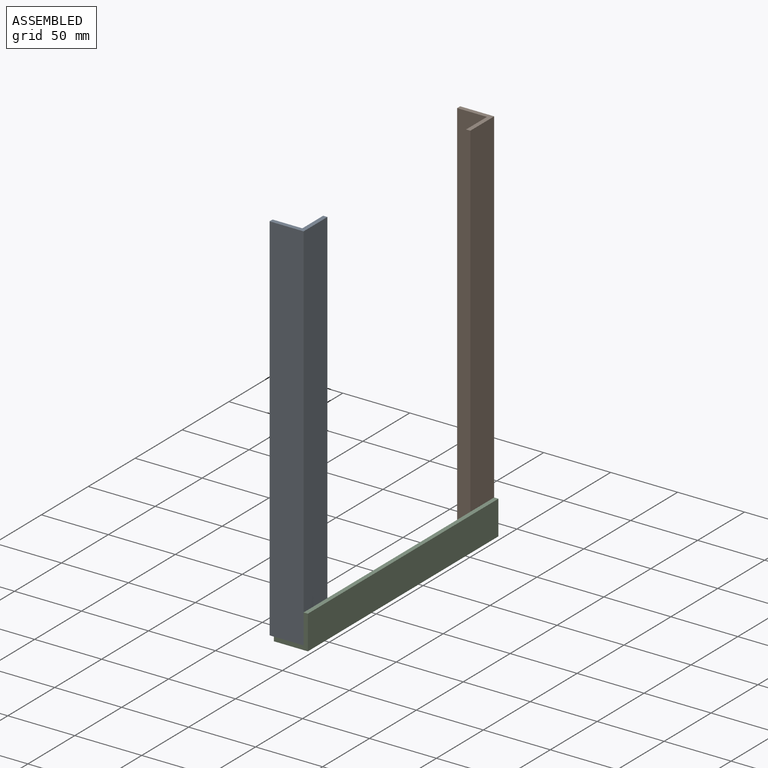
[diagram: assembled view]
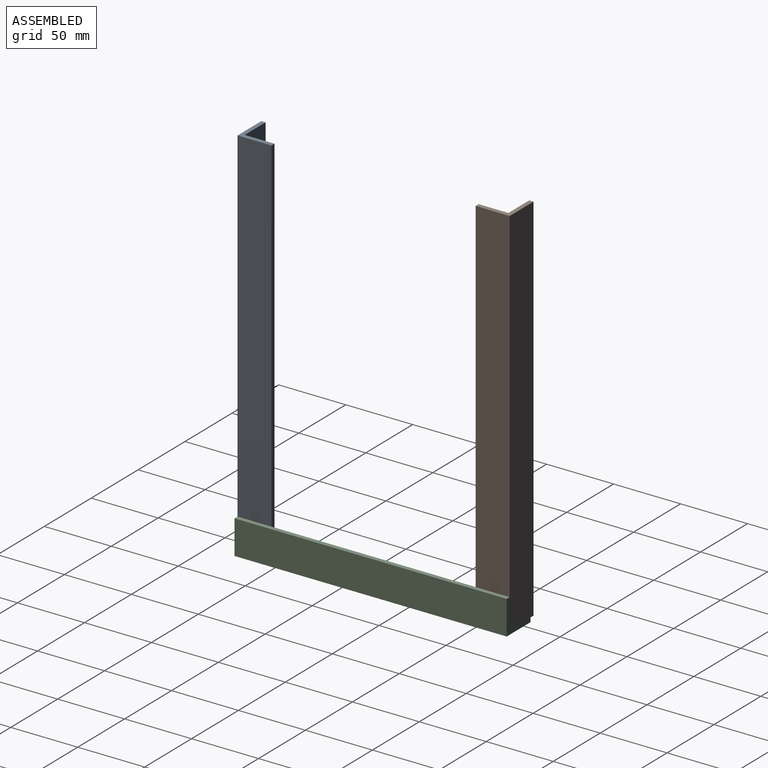
[diagram: assembled view, second angle]
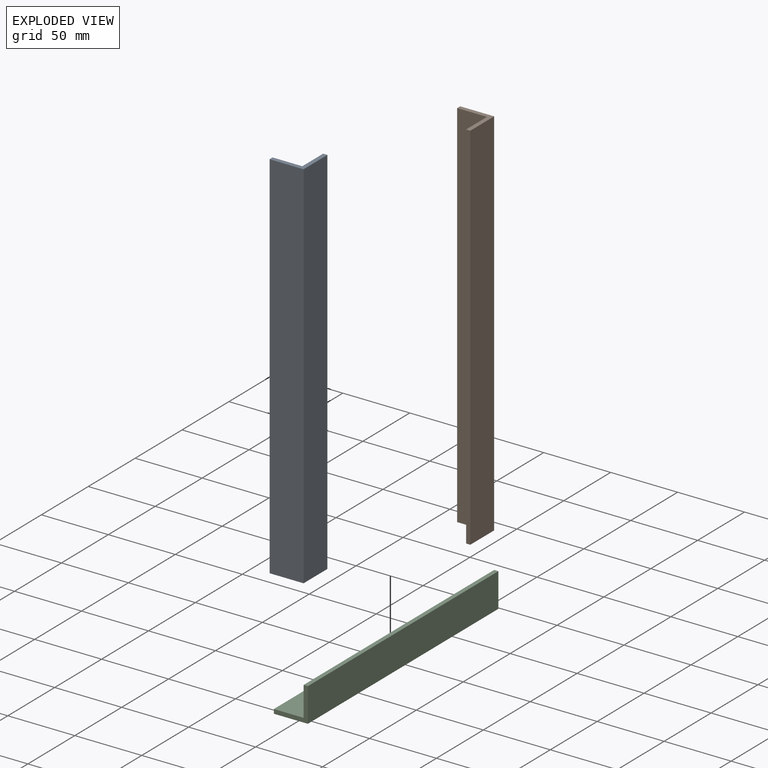
[diagram: exploded view]
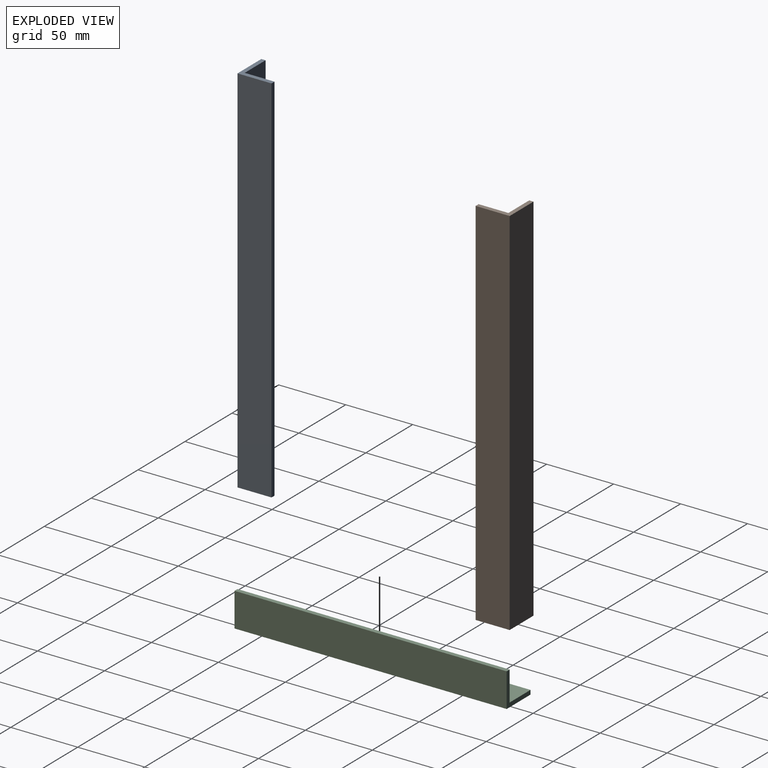
[diagram: exploded view, second angle]
ASSEMBLY  parts=3 mates=2
PART A: 8 faces, bbox 25.4x279.4x25.4 mm
  f0: plane 279.4x22.23mm, normal (-1,0,0), area 6209.7mm2, adj f1,f5,f6,f7
  f1: plane 279.4x22.23mm, normal (0,0,1), area 6209.7mm2, adj f0,f2,f6,f7
  f2: plane 279.4x3.18mm, normal (-1,0,0), area 887.1mm2, adj f1,f3,f6,f7
  f3: plane 279.4x25.4mm, normal (0,0,-1), area 7096.8mm2, adj f2,f4,f6,f7
  f4: plane 279.4x25.4mm, normal (1,0,0), area 7096.8mm2, adj f3,f5,f6,f7
  f5: plane 279.4x3.18mm, normal (0,0,1), area 887.1mm2, adj f0,f4,f6,f7
  f6: plane 25.4x25.4mm, normal (0,-1,0), area 151.2mm2, adj f0,f1,f2,f3,f4,f5
  f7: plane 25.4x25.4mm, normal (0,1,0), area 151.2mm2, adj f0,f1,f2,f3,f4,f5
PART B: 8 faces, bbox 25.4x279.4x25.4 mm
  f0: plane 279.4x3.18mm, normal (0,0,1), area 887.1mm2, adj f1,f5,f6,f7
  f1: plane 279.4x22.23mm, normal (-1,0,0), area 6209.7mm2, adj f0,f2,f6,f7
  f2: plane 279.4x22.23mm, normal (0,0,1), area 6209.7mm2, adj f1,f3,f6,f7
  f3: plane 279.4x3.18mm, normal (-1,0,0), area 887.1mm2, adj f2,f4,f6,f7
  f4: plane 279.4x25.4mm, normal (0,0,-1), area 7096.8mm2, adj f3,f5,f6,f7
  f5: plane 279.4x25.4mm, normal (1,0,0), area 7096.8mm2, adj f0,f4,f6,f7
  f6: plane 25.4x25.4mm, normal (0,-1,0), area 151.2mm2, adj f0,f1,f2,f3,f4,f5
  f7: plane 25.4x25.4mm, normal (0,1,0), area 151.2mm2, adj f0,f1,f2,f3,f4,f5
PART C: 8 faces, bbox 25.4x203.2x25.4 mm
  f0: plane 203.2x3.18mm, normal (-1,0,0), area 645.2mm2, adj f1,f5,f6,f7
  f1: plane 203.2x25.4mm, normal (0,0,-1), area 5161.3mm2, adj f0,f2,f6,f7
  f2: plane 203.2x25.4mm, normal (1,0,0), area 5161.3mm2, adj f1,f3,f6,f7
  f3: plane 203.2x3.18mm, normal (0,0,1), area 645.2mm2, adj f2,f4,f6,f7
  f4: plane 203.2x22.23mm, normal (-1,0,0), area 4516.1mm2, adj f3,f5,f6,f7
  f5: plane 203.2x22.23mm, normal (0,0,1), area 4516.1mm2, adj f0,f4,f6,f7
  f6: plane 25.4x25.4mm, normal (0,-1,0), area 151.2mm2, adj f0,f1,f2,f3,f4,f5
  f7: plane 25.4x25.4mm, normal (0,1,0), area 151.2mm2, adj f0,f1,f2,f3,f4,f5
PLACE A rot(axis=(-1,0,0),90deg) t=(-334.45,-158.34,-72.12)mm
PLACE B rot(axis=(-0.58,-0.58,0.58),120deg) t=(79.92,-350.97,-72.12)mm
PLACE C t=(-423.8,139.7,-106.6)mm
MATE fastened A.f7 <-> C.f5  axis (0,0,-1) through (-89.7,-63.5,-72.12)mm
MATE fastened B.f7 <-> C.f5  axis (0,0,-1) through (-89.7,139.7,-72.12)mm
